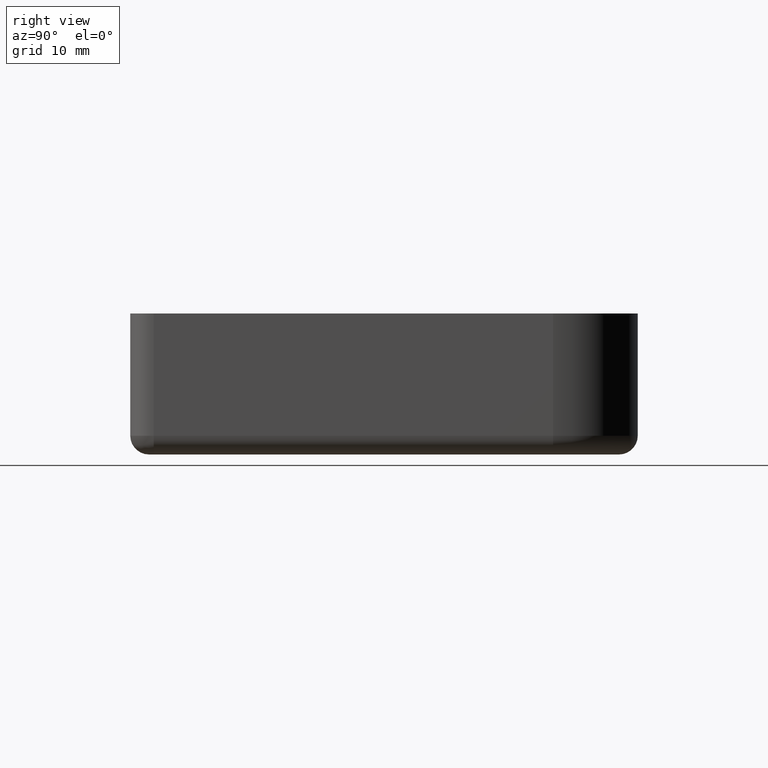
[diagram: clean part render]
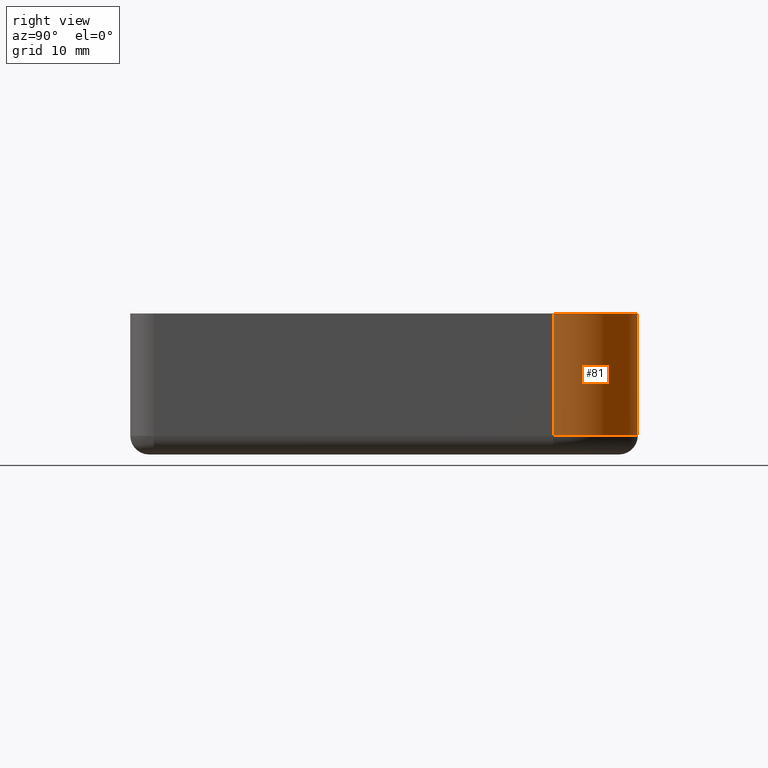
[diagram: same view with one face highlighted and labeled with its STEP entity id]
A machine part, right view. The second image highlights one B-rep face of the part: STEP entity #81.
In plain terms, the highlighted cylindrical surface (partial cylindrical patch) has radius 9 mm, axis along (0, 0, -1).
Its self-contained STEP definition (entity closure, byte-faithful):
#81 = ADVANCED_FACE( '', ( #128 ), #129, .T. );
#128 = FACE_OUTER_BOUND( '', #207, .T. );
#129 = CYLINDRICAL_SURFACE( '', #208, 9.00000000000000 );
#207 = EDGE_LOOP( '', ( #431, #432, #433, #434 ) );
#208 = AXIS2_PLACEMENT_3D( '', #435, #436, #437 );
#431 = ORIENTED_EDGE( '', *, *, #701, .F. );
#432 = ORIENTED_EDGE( '', *, *, #702, .T. );
#433 = ORIENTED_EDGE( '', *, *, #703, .T. );
#434 = ORIENTED_EDGE( '', *, *, #660, .F. );
#435 = CARTESIAN_POINT( '', ( -7.00000000000000, -7.00000000000000, -15.0000000000000 ) );
#436 = DIRECTION( '', ( 0.000000000000000, 0.000000000000000, -1.00000000000000 ) );
#437 = DIRECTION( '', ( 1.00000000000000, -1.83690953073357E-016, 0.000000000000000 ) );
#660 = EDGE_CURVE( '', #757, #759, #760, .T. );
#701 = EDGE_CURVE( '', #834, #757, #836, .T. );
#702 = EDGE_CURVE( '', #834, #837, #838, .T. );
#703 = EDGE_CURVE( '', #837, #759, #839, .T. );
#757 = VERTEX_POINT( '', #913 );
#759 = VERTEX_POINT( '', #916 );
#760 = CIRCLE( '', #917, 9.00000000000000 );
#834 = VERTEX_POINT( '', #1013 );
#836 = LINE( '', #1016, #1017 );
#837 = VERTEX_POINT( '', #1018 );
#838 = CIRCLE( '', #1019, 9.00000000000000 );
#839 = LINE( '', #1020, #1021 );
#913 = CARTESIAN_POINT( '', ( 2.00000000000000, -7.00000000000001, 0.000000000000000 ) );
#916 = CARTESIAN_POINT( '', ( -7.00000000000000, 2.00000000000000, 0.000000000000000 ) );
#917 = AXIS2_PLACEMENT_3D( '', #1124, #1125, #1126 );
#1013 = CARTESIAN_POINT( '', ( 2.00000000000000, -7.00000000000001, -13.0000000000000 ) );
#1016 = CARTESIAN_POINT( '', ( 2.00000000000000, -7.00000000000001, -15.0000000000000 ) );
#1017 = VECTOR( '', #1201, 1000.00000000000 );
#1018 = CARTESIAN_POINT( '', ( -7.00000000000000, 2.00000000000000, -13.0000000000000 ) );
#1019 = AXIS2_PLACEMENT_3D( '', #1202, #1203, #1204 );
#1020 = CARTESIAN_POINT( '', ( -7.00000000000000, 2.00000000000000, -15.0000000000000 ) );
#1021 = VECTOR( '', #1205, 1000.00000000000 );
#1124 = CARTESIAN_POINT( '', ( -7.00000000000000, -7.00000000000000, 0.000000000000000 ) );
#1125 = DIRECTION( '', ( 0.000000000000000, 0.000000000000000, 1.00000000000000 ) );
#1126 = DIRECTION( '', ( 1.00000000000000, -1.83690953073357E-016, 0.000000000000000 ) );
#1201 = DIRECTION( '', ( 0.000000000000000, 0.000000000000000, 1.00000000000000 ) );
#1202 = CARTESIAN_POINT( '', ( -7.00000000000000, -7.00000000000000, -13.0000000000000 ) );
#1203 = DIRECTION( '', ( 0.000000000000000, 0.000000000000000, 1.00000000000000 ) );
#1204 = DIRECTION( '', ( -1.00000000000000, 1.22460635382238E-016, 0.000000000000000 ) );
#1205 = DIRECTION( '', ( 0.000000000000000, 0.000000000000000, 1.00000000000000 ) );